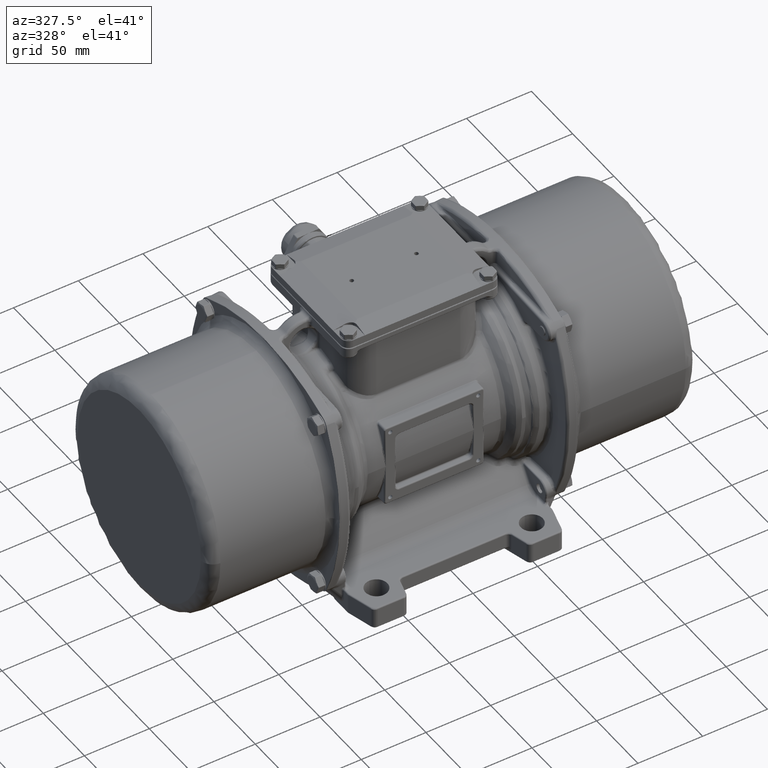
[diagram: clean part render]
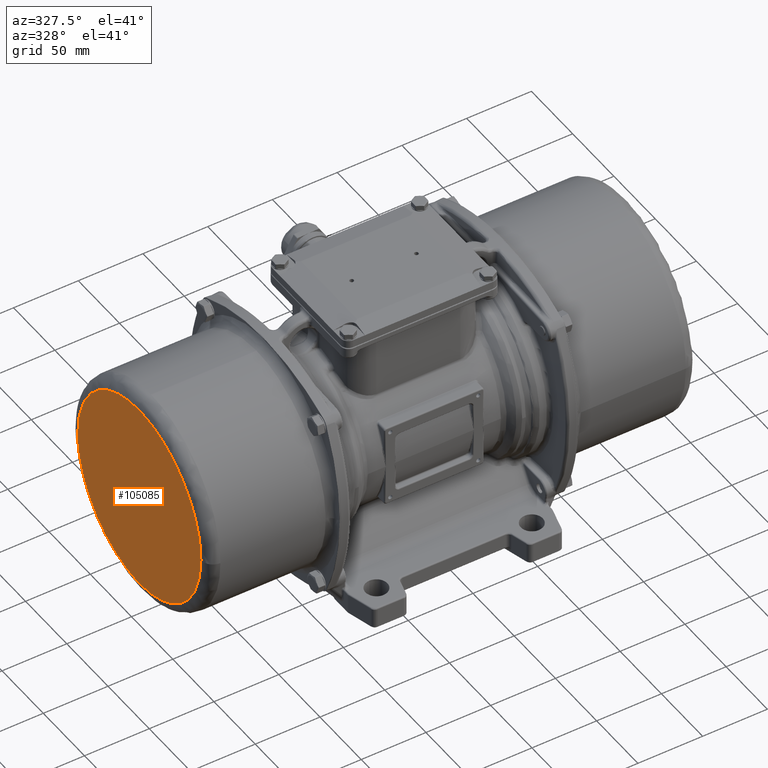
[diagram: same view with one face highlighted and labeled with its STEP entity id]
A machine part, auxiliary view. The second image highlights one B-rep face of the part: STEP entity #105085.
In plain terms, the highlighted planar face has unit normal (1, 0, 0).
Its self-contained STEP definition (entity closure, byte-faithful):
#5807 = CARTESIAN_POINT ( 'NONE',  ( -194.0000152587889800, 74.70000018002879500, -68.99999998815710000 ) ) ;
#5813 = CARTESIAN_POINT ( 'NONE',  ( -194.0000152587889800, 74.70000017473913100, -66.55645851069670000 ) ) ;
#5815 = CARTESIAN_POINT ( 'NONE',  ( -194.0000152587889800, 74.45980012367181200, -61.66592287808257600 ) ) ;
#5817 = CARTESIAN_POINT ( 'NONE',  ( -194.0000152587889800, 73.38252595144568600, -54.40362270191229800 ) ) ;
#5819 = CARTESIAN_POINT ( 'NONE',  ( -194.0000152587889800, 71.59815313501030700, -47.28056548871610000 ) ) ;
#5821 = CARTESIAN_POINT ( 'NONE',  ( -194.0000152587889800, 68.30348314332491100, -38.07067621060589600 ) ) ;
#5823 = CARTESIAN_POINT ( 'NONE',  ( -194.0000152587889800, 62.51213984487380100, -27.23079924419629800 ) ) ;
#5825 = CARTESIAN_POINT ( 'NONE',  ( -194.0000152587889800, 54.71371518456789600, -17.73206759553989900 ) ) ;
#5827 = CARTESIAN_POINT ( 'NONE',  ( -194.0000152587889800, 47.46561849465040000, -11.16367317422949900 ) ) ;
#5829 = CARTESIAN_POINT ( 'NONE',  ( -194.0000152587889800, 41.56792641527070500, -6.789327008951019600 ) ) ;
#5831 = CARTESIAN_POINT ( 'NONE',  ( -194.0000152587889800, 35.26956016787949700, -3.014541608004380100 ) ) ;
#5833 = CARTESIAN_POINT ( 'NONE',  ( -194.0000152587889800, 26.42768830076849800, 1.168246380695819900 ) ) ;
#5835 = CARTESIAN_POINT ( 'NONE',  ( -194.0000152587889800, 14.66576577237250100, 4.737872931664800700 ) ) ;
#5837 = CARTESIAN_POINT ( 'NONE',  ( -194.0000152587889800, 4.478134278373960200E-005, 6.181059451412079600 ) ) ;
#5839 = CARTESIAN_POINT ( 'NONE',  ( -194.0000152587889800, -14.66567792934560000, 4.737890407016530000 ) ) ;
#5841 = CARTESIAN_POINT ( 'NONE',  ( -194.0000152587889800, -26.42760471122189600, 1.168277871298390100 ) ) ;
#5843 = CARTESIAN_POINT ( 'NONE',  ( -194.0000152587889800, -35.26948156244479500, -3.014499581618749900 ) ) ;
#5845 = CARTESIAN_POINT ( 'NONE',  ( -194.0000152587889800, -41.56785230778280000, -6.789277477567889500 ) ) ;
#5847 = CARTESIAN_POINT ( 'NONE',  ( -194.0000152587889800, -47.46554959953309800, -11.16361661528310000 ) ) ;
#5849 = CARTESIAN_POINT ( 'NONE',  ( -194.0000152587889800, -54.71365411619979800, -17.73200239991610200 ) ) ;
#5851 = CARTESIAN_POINT ( 'NONE',  ( -194.0000152587889800, -62.51209009498010300, -27.23072475613449900 ) ) ;
#5853 = CARTESIAN_POINT ( 'NONE',  ( -194.0000152587889800, -68.30344630998610000, -38.07059482169890400 ) ) ;
#5855 = CARTESIAN_POINT ( 'NONE',  ( -194.0000152587889800, -71.59812727597069700, -47.28048017394630200 ) ) ;
#5857 = CARTESIAN_POINT ( 'NONE',  ( -194.0000152587889800, -73.38250858008319700, -54.40353526091799800 ) ) ;
#5859 = CARTESIAN_POINT ( 'NONE',  ( -194.0000152587889800, -74.45979576727300800, -61.66586355476110300 ) ) ;
#5861 = CARTESIAN_POINT ( 'NONE',  ( -194.0000152587889800, -74.70000020182820300, -66.55642889777199400 ) ) ;
#5863 = CARTESIAN_POINT ( 'NONE',  ( -194.0000152587889800, -74.70000020144081500, -69.00000001184291400 ) ) ;
#5871 = CARTESIAN_POINT ( 'NONE',  ( -194.0000152587889800, -74.70000020144081500, -69.00000001184291400 ) ) ;
#6007 = CARTESIAN_POINT ( 'NONE',  ( -194.0000152587889800, -74.70000020105339900, -71.44357112591380600 ) ) ;
#6009 = CARTESIAN_POINT ( 'NONE',  ( -194.0000152587889800, -74.45979576494760000, -76.33413646884849900 ) ) ;
#6011 = CARTESIAN_POINT ( 'NONE',  ( -194.0000152587889800, -73.38250857545500600, -83.59646476235009500 ) ) ;
#6013 = CARTESIAN_POINT ( 'NONE',  ( -194.0000152587889800, -71.59812726908390300, -90.71951984875589400 ) ) ;
#6015 = CARTESIAN_POINT ( 'NONE',  ( -194.0000152587889800, -68.30344630017910400, -99.92940519995859500 ) ) ;
#6017 = CARTESIAN_POINT ( 'NONE',  ( -194.0000152587889800, -62.51209008173589900, -110.7692752636870100 ) ) ;
#6019 = CARTESIAN_POINT ( 'NONE',  ( -194.0000152587889800, -54.71365409994380300, -120.2679976174320000 ) ) ;
#6021 = CARTESIAN_POINT ( 'NONE',  ( -194.0000152587889800, -47.46554958119450200, -126.8363833997669900 ) ) ;
#6023 = CARTESIAN_POINT ( 'NONE',  ( -194.0000152587889800, -41.56785228805710400, -131.2107225356120100 ) ) ;
#6025 = CARTESIAN_POINT ( 'NONE',  ( -194.0000152587889800, -35.26948154152229600, -134.9855004295640100 ) ) ;
#6027 = CARTESIAN_POINT ( 'NONE',  ( -194.0000152587889800, -26.42760468897300200, -139.1682778796779900 ) ) ;
#6029 = CARTESIAN_POINT ( 'NONE',  ( -194.0000152587889800, -14.66567790596500000, -142.7378904116670200 ) ) ;
#6031 = CARTESIAN_POINT ( 'NONE',  ( -194.0000152587889800, 4.480518114435839900E-005, -144.1810594514120100 ) ) ;
#6033 = CARTESIAN_POINT ( 'NONE',  ( -194.0000152587889800, 14.66576579575309900, -142.7378729270150200 ) ) ;
#6035 = CARTESIAN_POINT ( 'NONE',  ( -194.0000152587889800, 26.42768832301739900, -139.1682463723159900 ) ) ;
#6037 = CARTESIAN_POINT ( 'NONE',  ( -194.0000152587889800, 35.26956018880200400, -134.9854583808119900 ) ) ;
#6039 = CARTESIAN_POINT ( 'NONE',  ( -194.0000152587889800, 41.56792643499640900, -131.2106729778689700 ) ) ;
#6041 = CARTESIAN_POINT ( 'NONE',  ( -194.0000152587889800, 47.46561851298910300, -126.8363268107200200 ) ) ;
#6043 = CARTESIAN_POINT ( 'NONE',  ( -194.0000152587889800, 54.71371520082379900, -120.2679323871120000 ) ) ;
#6045 = CARTESIAN_POINT ( 'NONE',  ( -194.0000152587889800, 62.51213985811800500, -110.7692007359820000 ) ) ;
#6047 = CARTESIAN_POINT ( 'NONE',  ( -194.0000152587889800, 68.30348315313190700, -99.92932376773659100 ) ) ;
#6049 = CARTESIAN_POINT ( 'NONE',  ( -194.0000152587889800, 71.59815314189700100, -90.71943448858161200 ) ) ;
#6051 = CARTESIAN_POINT ( 'NONE',  ( -194.0000152587889800, 73.38252595607389100, -83.59637727481980100 ) ) ;
#6053 = CARTESIAN_POINT ( 'NONE',  ( -194.0000152587889800, 74.45980012599731900, -76.33407709830780200 ) ) ;
#6055 = CARTESIAN_POINT ( 'NONE',  ( -194.0000152587889800, 74.70000017551394900, -71.44354146561777000 ) ) ;
#6057 = CARTESIAN_POINT ( 'NONE',  ( -194.0000152587889800, 74.70000018002879500, -68.99999998815710000 ) ) ;
#20261 = EDGE_LOOP ( 'NONE', ( #80589, #80590 ) ) ;
#21737 = FACE_OUTER_BOUND ( 'NONE', #20261, .T. ) ;
#48120 = CARTESIAN_POINT ( 'NONE',  ( -194.0000152587889800, -74.70000020144081500, -69.00000001184291400 ) ) ;
#48130 = CARTESIAN_POINT ( 'NONE',  ( -194.0000152587889800, 74.70000018002879500, -68.99999998815710000 ) ) ;
#70233 = B_SPLINE_CURVE_WITH_KNOTS ( 'NONE', 3,
 ( #5807, #5813, #5815, #5817, #5819, #5821, #5823, #5825, #5827, #5829, #5831, #5833, #5835, #5837, #5839, #5841, #5843, #5845, #5847, #5849, #5851, #5853, #5855, #5857, #5859, #5861, #5863 ),
 .UNSPECIFIED., .F., .F.,
 ( 4, 1, 1, 1, 1, 1, 1, 1, 1, 1, 1, 1, 1, 1, 1, 1, 1, 1, 1, 1, 1, 1, 1, 1, 4 ),
 ( 0.0000000000000000000, 0.03126846445520207300, 0.06253730868354270800, 0.09380615291188346100, 0.1250749971402242100, 0.1875373561551865700, 0.2499997151701450200, 0.2812685593984857700, 0.3125374036268265300, 0.3438062478551671700, 0.3750750920835078700, 0.4375374510984702500, 0.4999998101134326400, 0.5624621691283912000, 0.6249245281433527500, 0.6561933723716935100, 0.6874622166000341500, 0.7187310608283747900, 0.7499999050567155400, 0.8124622640716764300, 0.8749246230866372100, 0.9061934673149778500, 0.9374623115433186000, 0.9687311557716593600, 1.000000000000000000 ),
 .UNSPECIFIED. ) ;
#70235 = B_SPLINE_CURVE_WITH_KNOTS ( 'NONE', 3,
 ( #5871, #6007, #6009, #6011, #6013, #6015, #6017, #6019, #6021, #6023, #6025, #6027, #6029, #6031, #6033, #6035, #6037, #6039, #6041, #6043, #6045, #6047, #6049, #6051, #6053, #6055, #6057 ),
 .UNSPECIFIED., .F., .F.,
 ( 4, 1, 1, 1, 1, 1, 1, 1, 1, 1, 1, 1, 1, 1, 1, 1, 1, 1, 1, 1, 1, 1, 1, 1, 4 ),
 ( 0.0000000000000000000, 0.03126884422834078100, 0.06253768845668145100, 0.09380653268502223100, 0.1250753769133630100, 0.1875377359283254600, 0.2500000949432839600, 0.2812689391716247100, 0.3125377833999655200, 0.3438066276283061600, 0.3750754718566469700, 0.4375378308716093600, 0.5000001898865718000, 0.5624625489015303600, 0.6249249079164920200, 0.6561937521448332200, 0.6874625963731735300, 0.7187314406015142800, 0.7500002848298549200, 0.8124626438448158100, 0.8749250028597768100, 0.9061938470881174500, 0.9374626913164582100, 0.9687315355447989600, 1.000000000000000000 ),
 .UNSPECIFIED. ) ;
#80589 = ORIENTED_EDGE ( 'NONE', *, *, #132118, .F. ) ;
#80590 = ORIENTED_EDGE ( 'NONE', *, *, #132109, .F. ) ;
#105085 = ADVANCED_FACE ( 'NONE', ( #21737 ), #184962, .F. ) ;
#132109 = EDGE_CURVE ( 'NONE', #137589, #137579, #70233, .T. ) ;
#132118 = EDGE_CURVE ( 'NONE', #137579, #137589, #70235, .T. ) ;
#137579 = VERTEX_POINT ( 'NONE', #48120 ) ;
#137589 = VERTEX_POINT ( 'NONE', #48130 ) ;
#184962 = PLANE ( 'NONE',  #211356 ) ;
#184965 = CARTESIAN_POINT ( 'NONE',  ( -194.0000152587889800, 74.70010019186931100, -143.7001001788890200 ) ) ;
#184971 = DIRECTION ( 'NONE',  ( 1.000000000000000000, 0.0000000000000000000, 0.0000000000000000000 ) ) ;
#184972 = DIRECTION ( 'NONE',  ( 0.0000000000000000000, -1.585393008724740100E-010, 1.000000000000000000 ) ) ;
#211356 = AXIS2_PLACEMENT_3D ( 'NONE', #184965, #184971, #184972 ) ;